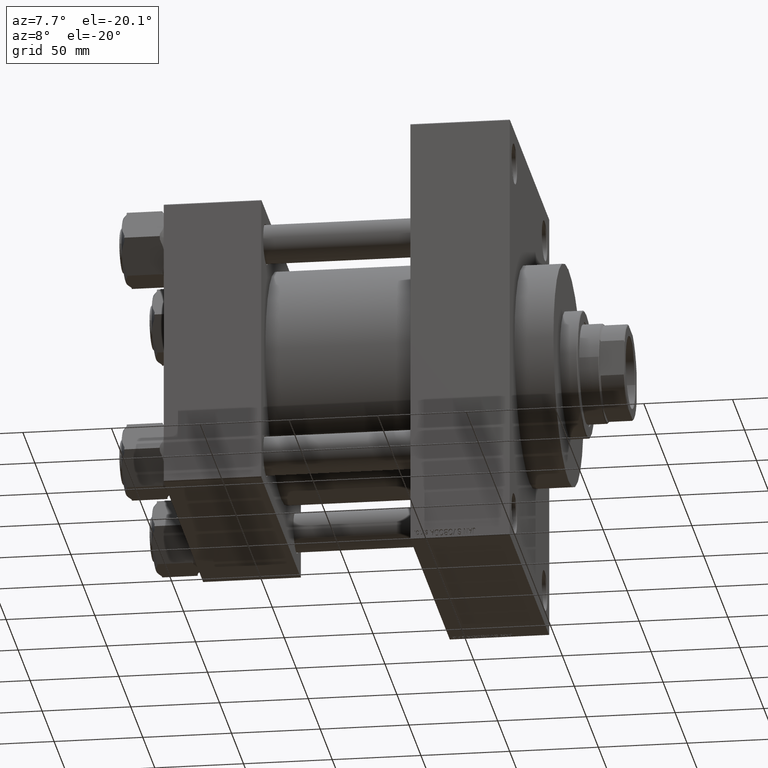
[diagram: clean part render]
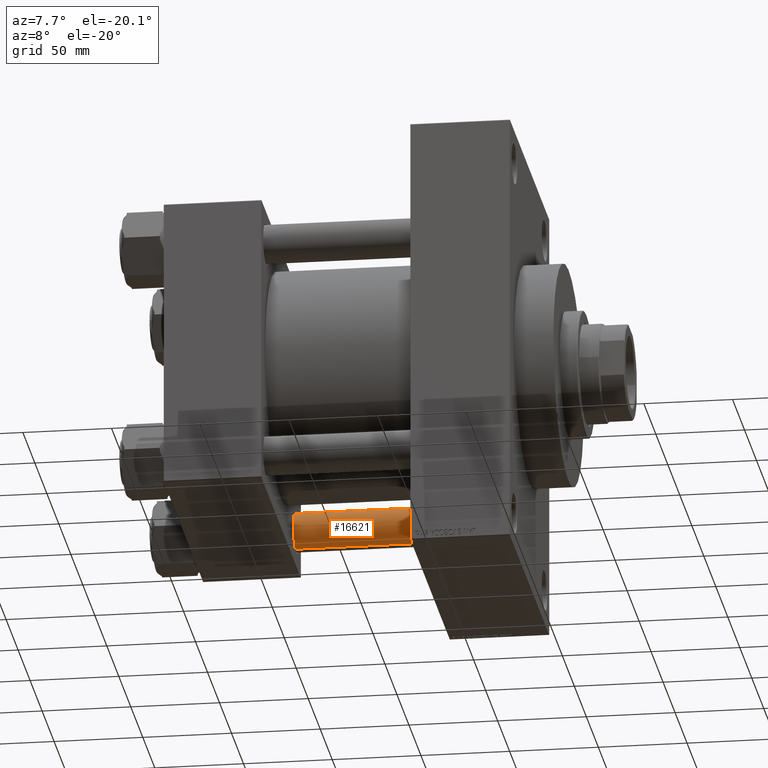
[diagram: same view with one face highlighted and labeled with its STEP entity id]
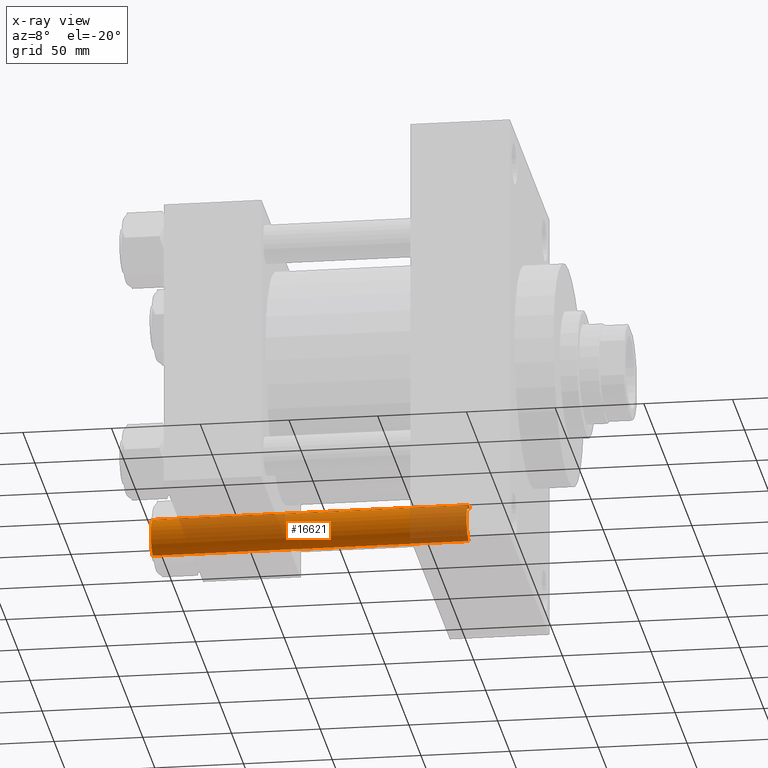
[diagram: x-ray of the same camera — body ghosted, the highlighted face saturated]
A machine part, auxiliary view. The second image highlights one B-rep face of the part: STEP entity #16621.
The next image is the same camera in x-ray: the body ghosted, the highlighted face saturated — about 38% of this face is hidden behind the body in this view.
In plain terms, the highlighted cylindrical surface (edge-blend (fillet) strip) has radius 11 mm, axis along (1, -0, 0).
Its self-contained STEP definition (entity closure, byte-faithful):
#1164 = CARTESIAN_POINT ( 'NONE',  ( 11.00000000000000000, 1.347111479062088207E-15, 179.0000000000000000 ) ) ;
#4235 = ORIENTED_EDGE ( 'NONE', *, *, #28521, .T. ) ;
#5915 = VECTOR ( 'NONE', #13487, 1000.000000000000000 ) ;
#6262 = CARTESIAN_POINT ( 'NONE',  ( -11.00000000000000000, 0.000000000000000000, 178.5000000000000853 ) ) ;
#6891 = VERTEX_POINT ( 'NONE', #16436 ) ;
#7563 = ORIENTED_EDGE ( 'NONE', *, *, #40807, .F. ) ;
#7570 = CARTESIAN_POINT ( 'NONE',  ( 11.00000000000000000, 1.347111479062088207E-15, 0.5000000000001392220 ) ) ;
#9117 = DIRECTION ( 'NONE',  ( -0.000000000000000000, -0.000000000000000000, 1.000000000000000000 ) ) ;
#11529 = DIRECTION ( 'NONE',  ( -0.000000000000000000, -0.000000000000000000, -1.000000000000000000 ) ) ;
#12281 = DIRECTION ( 'NONE',  ( 1.000000000000000000, 0.000000000000000000, 0.000000000000000000 ) ) ;
#13487 = DIRECTION ( 'NONE',  ( -0.000000000000000000, -0.000000000000000000, -1.000000000000000000 ) ) ;
#14032 = CIRCLE ( 'NONE', #14807, 11.00000000000000000 ) ;
#14807 = AXIS2_PLACEMENT_3D ( 'NONE', #16059, #45714, #42563 ) ;
#16059 = CARTESIAN_POINT ( 'NONE',  ( 0.000000000000000000, 0.000000000000000000, 178.5000000000000853 ) ) ;
#16389 = AXIS2_PLACEMENT_3D ( 'NONE', #20962, #38600, #35218 ) ;
#16436 = CARTESIAN_POINT ( 'NONE',  ( 11.00000000000000000, 1.347111479062088207E-15, 178.5000000000000853 ) ) ;
#16531 = CIRCLE ( 'NONE', #43485, 11.00000000000000000 ) ;
#16621 = ADVANCED_FACE ( 'NONE', ( #27972 ), #34992, .T. ) ;
#16653 = VERTEX_POINT ( 'NONE', #6262 ) ;
#19753 = CARTESIAN_POINT ( 'NONE',  ( 0.000000000000000000, 0.000000000000000000, 0.5000000000001392220 ) ) ;
#20798 = EDGE_CURVE ( 'NONE', #29851, #37962, #16531, .T. ) ;
#20962 = CARTESIAN_POINT ( 'NONE',  ( 0.000000000000000000, 0.000000000000000000, 179.0000000000000000 ) ) ;
#24334 = CARTESIAN_POINT ( 'NONE',  ( -11.00000000000000000, 0.000000000000000000, 179.0000000000000000 ) ) ;
#25817 = CARTESIAN_POINT ( 'NONE',  ( -11.00000000000000000, 0.000000000000000000, 0.5000000000001392220 ) ) ;
#27972 = FACE_OUTER_BOUND ( 'NONE', #46640, .T. ) ;
#28190 = ORIENTED_EDGE ( 'NONE', *, *, #20798, .T. ) ;
#28197 = LINE ( 'NONE', #24334, #5915 ) ;
#28521 = EDGE_CURVE ( 'NONE', #16653, #29851, #28197, .T. ) ;
#29851 = VERTEX_POINT ( 'NONE', #25817 ) ;
#30091 = LINE ( 'NONE', #1164, #34152 ) ;
#34152 = VECTOR ( 'NONE', #11529, 1000.000000000000000 ) ;
#34992 = CYLINDRICAL_SURFACE ( 'NONE', #16389, 11.00000000000000000 ) ;
#35218 = DIRECTION ( 'NONE',  ( -1.000000000000000000, 0.000000000000000000, 0.000000000000000000 ) ) ;
#37962 = VERTEX_POINT ( 'NONE', #7570 ) ;
#38600 = DIRECTION ( 'NONE',  ( -0.000000000000000000, -0.000000000000000000, -1.000000000000000000 ) ) ;
#40807 = EDGE_CURVE ( 'NONE', #6891, #37962, #30091, .T. ) ;
#42563 = DIRECTION ( 'NONE',  ( 1.000000000000000000, 0.000000000000000000, 0.000000000000000000 ) ) ;
#42692 = EDGE_CURVE ( 'NONE', #6891, #16653, #14032, .T. ) ;
#43485 = AXIS2_PLACEMENT_3D ( 'NONE', #19753, #9117, #12281 ) ;
#45714 = DIRECTION ( 'NONE',  ( 0.000000000000000000, 0.000000000000000000, -1.000000000000000000 ) ) ;
#46640 = EDGE_LOOP ( 'NONE', ( #7563, #47374, #4235, #28190 ) ) ;
#47374 = ORIENTED_EDGE ( 'NONE', *, *, #42692, .T. ) ;